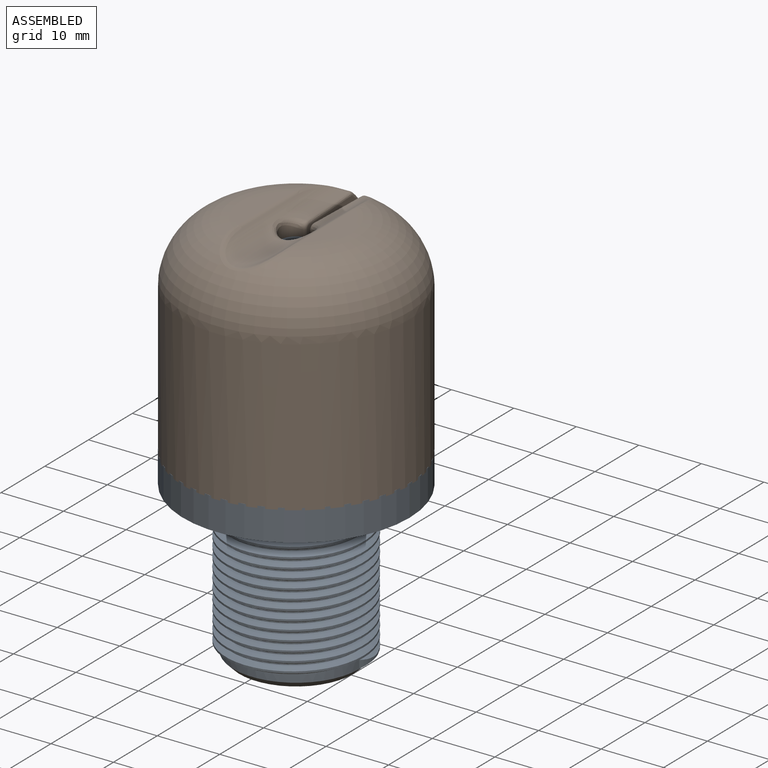
[diagram: assembled view]
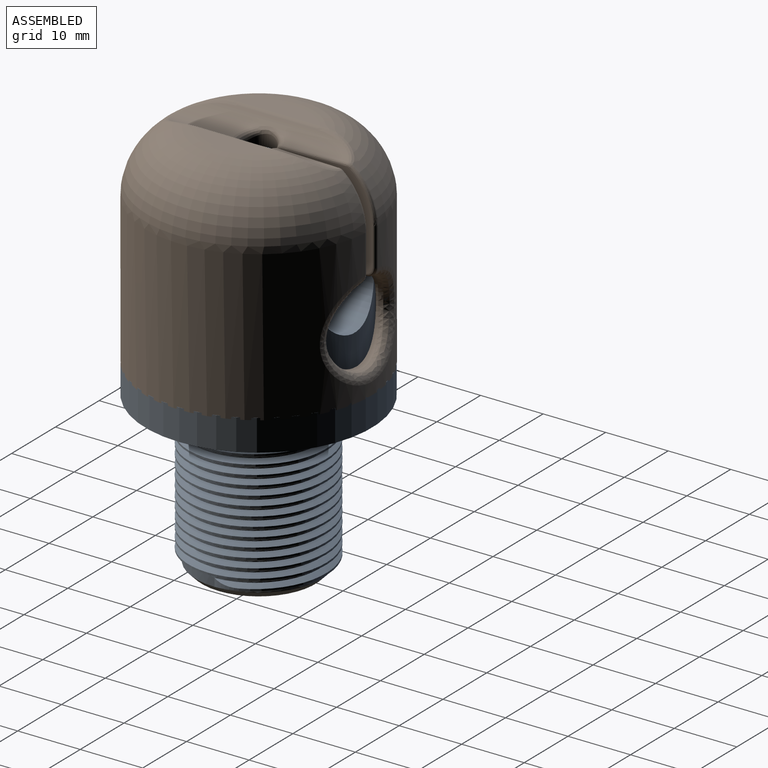
[diagram: assembled view, second angle]
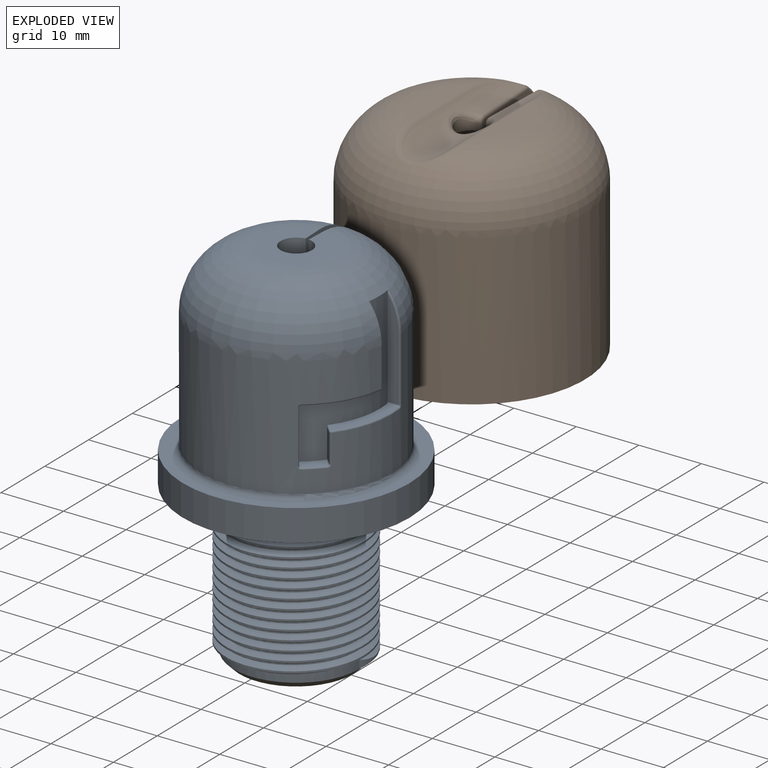
[diagram: exploded view]
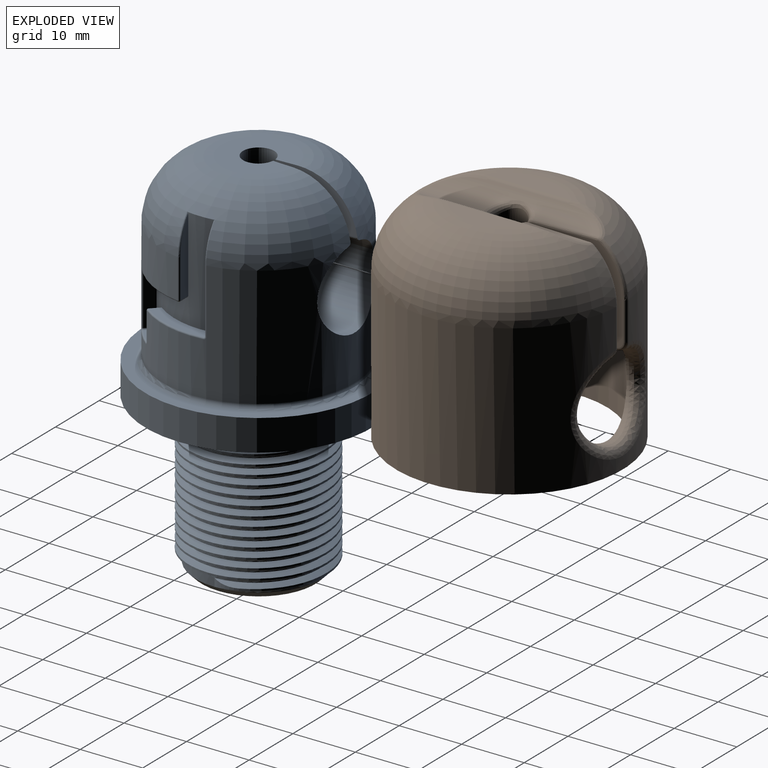
[diagram: exploded view, second angle]
ASSEMBLY  parts=2 mates=2
PART A: 81 faces, bbox 36.8x36.8x60.1 mm
  f0: cylinder r=10.08mm len=24mm, axis (0,0,1), area 216.8mm2, adj f6,f11,f77,f79,f80
  f1: plane 11.61x1.74mm, normal (0,-1,0), area 17.1mm2, adj f27,f32,f33,f34
  f2: torus R=5.88mm, axis (0,0,1), area 1035.1mm2, adj f3,f5,f13,f14,f15,f20,f27,f32
  f3: cylinder r=15.38mm len=30.75mm, axis (0,0,-1), area 1473.7mm2, adj f2,f15,f33,f36,f38,f39,f41,f42
  f4: plane 11.61x1.74mm, normal (0,1,0), area 17.1mm2, adj f20,f53,f55,f56
  f5: plane 11.75x11.74mm, normal (0,0,1), area 86.6mm2, adj f2,f12,f13,f14
  f6: plane 36.85x36.85mm, normal (0,0,-1), area 680.7mm2, adj f0,f16,f77,f78,f79
  f7: cylinder r=6.5mm len=25mm, axis (0,0,1), area 1021mm2, adj f8,f10
  f8: plane 18.16x18.16mm, normal (0,0,-1), area 126.3mm2, adj f7,f11
  f9: sphere r=7.5mm, area 323.1mm2, adj f10,f12,f13,f14,f15,f74,f75
  f10: cone r=6.5mm half-angle=2.4deg, axis (0,0,1), area 899.7mm2, adj f7,f9,f15
  f11: cone r=10.08mm half-angle=45deg, axis (0,0,1), area 85.1mm2, adj f0,f8
  f12: cylinder r=2.5mm len=5mm, axis (0,0,1), area 54.9mm2, adj f5,f9,f13,f14
  f13: plane 12.9x8.26mm, normal (-1,0.04,0), area 71.7mm2, adj f2,f5,f9,f12,f74
  f14: plane 12.9x8.26mm, normal (1,0.04,0), area 71.7mm2, adj f2,f5,f9,f12,f75
  f15: cylinder r=6.5mm len=13mm, axis (0,-1,0), area 375.2mm2, adj f2,f3,f9,f10,f74,f75
  f16: cylinder r=18.12mm len=36.25mm, axis (0,0,-1), area 569.4mm2, adj f6,f17
  f17: plane 36.25x36.25mm, normal (0,0,1), area 215.2mm2, adj f16,f76
  f18: plane 10.95x4.35mm, normal (0,0,1), area 19.1mm2, adj f20,f57,f63,f64
  f19: plane 15.61x1.74mm, normal (0,-1,0), area 24.1mm2, adj f20,f54,f57,f58
  f20: cylinder r=13.38mm len=21.33mm, axis (0,0,1), area 128.7mm2, adj f2,f4,f18,f19,f21,f22,f23,f24
  f21: plane 8.5x1.25mm, normal (0.72,0.69,0), area 14.7mm2, adj f20,f62,f67,f68
  f22: plane 9.77x7mm, normal (0,0,-1), area 19.1mm2, adj f20,f56,f61,f62
  f23: plane 3.74x3.7mm, normal (0,0,1), area 6.1mm2, adj f20,f68,f69,f73
  f24: plane 4.5x1.25mm, normal (-0.72,-0.69,0), area 7.8mm2, adj f20,f63,f69,f70
  f25: plane 10.95x4.35mm, normal (0,0,1), area 19.1mm2, adj f27,f46,f48,f49
  f26: plane 15.61x1.74mm, normal (0,1,0), area 24.1mm2, adj f27,f49,f51,f52
  f27: cylinder r=13.38mm len=21.33mm, axis (0,0,1), area 128.7mm2, adj f1,f2,f25,f26,f28,f29,f30,f31
  f28: plane 8.5x1.25mm, normal (-0.72,-0.69,0), area 14.7mm2, adj f27,f37,f39,f40
  f29: plane 9.77x7mm, normal (0,0,-1), area 19.1mm2, adj f27,f34,f36,f37
  f30: plane 3.74x3.7mm, normal (0,0,1), area 6.1mm2, adj f27,f40,f42,f43
  f31: plane 4.5x1.25mm, normal (0.72,0.69,0), area 7.8mm2, adj f27,f43,f45,f46
  f32: bspline ~8.42x2.62mm, area 2.6mm2, adj f1,f2,f27,f33
  f33: cylinder r=0.25mm len=6.25mm, axis (0,0,-1), area 2.7mm2, adj f1,f3,f32,f35
  f34: cylinder r=0.25mm len=1.77mm, axis (-1,0,0), area 0.7mm2, adj f1,f27,f29,f35
  f35: sphere r=0.25mm, area 0.1mm2, adj f33,f34,f36
  f36: torus R=15.12mm, axis (0,0,1), area 4.6mm2, adj f3,f29,f35,f38
  f37: cylinder r=0.25mm len=1.47mm, axis (-0.69,0.72,0), area 0.7mm2, adj f27,f28,f29,f38
  f38: bspline ~0.61x0.53mm, area 0.2mm2, adj f3,f36,f37,f39
  f39: cylinder r=0.25mm len=8.5mm, axis (0,0,-1), area 3.7mm2, adj f3,f28,f38,f41
  f40: cylinder r=0.25mm len=1.47mm, axis (0.69,-0.72,0), area 0.7mm2, adj f27,f28,f30,f41
  f41: bspline ~0.59x0.53mm, area 0.2mm2, adj f3,f39,f40,f42
  f42: torus R=15.12mm, axis (0,0,1), area 1.4mm2, adj f3,f30,f41,f44
  f43: cylinder r=0.25mm len=1.47mm, axis (0.69,-0.72,0), area 0.7mm2, adj f27,f30,f31,f44
  f44: bspline ~0.61x0.54mm, area 0.2mm2, adj f3,f42,f43,f45
  f45: cylinder r=0.25mm len=4.5mm, axis (0,0,-1), area 1.9mm2, adj f3,f31,f44,f47
  f46: cylinder r=0.25mm len=1.45mm, axis (-0.69,0.72,0), area 0.7mm2, adj f25,f27,f31,f47
  f47: sphere r=0.25mm, area 0.1mm2, adj f45,f46,f48
  f48: torus R=15.12mm, axis (0,0,1), area 4.6mm2, adj f3,f25,f47,f50
  f49: cylinder r=0.25mm len=1.8mm, axis (1,0,0), area 0.7mm2, adj f25,f26,f27,f50
  f50: bspline ~0.61x0.59mm, area 0.2mm2, adj f3,f48,f49,f51
  f51: cylinder r=0.25mm len=10.25mm, axis (0,0,-1), area 4.4mm2, adj f3,f26,f50,f52
  f52: bspline ~7x2.62mm, area 2.6mm2, adj f2,f26,f27,f51
  f53: bspline ~8.42x2.62mm, area 2.6mm2, adj f2,f4,f20,f55
  f54: bspline ~7x2.62mm, area 2.6mm2, adj f2,f19,f20,f58
  f55: cylinder r=0.25mm len=6.25mm, axis (0,0,-1), area 2.7mm2, adj f3,f4,f53,f59
  f56: cylinder r=0.25mm len=1.77mm, axis (1,0,0), area 0.7mm2, adj f4,f20,f22,f59
  f57: cylinder r=0.25mm len=1.8mm, axis (-1,0,0), area 0.7mm2, adj f18,f19,f20,f60
  f58: cylinder r=0.25mm len=10.25mm, axis (0,0,-1), area 4.4mm2, adj f3,f19,f54,f60
  f59: sphere r=0.25mm, area 0.1mm2, adj f55,f56,f61
  f60: bspline ~0.61x0.59mm, area 0.2mm2, adj f3,f57,f58,f64
  f61: torus R=15.12mm, axis (0,0,1), area 4.6mm2, adj f3,f22,f59,f65
  f62: cylinder r=0.25mm len=1.47mm, axis (0.69,-0.72,0), area 0.7mm2, adj f20,f21,f22,f65
  f63: cylinder r=0.25mm len=1.45mm, axis (0.69,-0.72,0), area 0.7mm2, adj f18,f20,f24,f66
  f64: torus R=15.12mm, axis (0,0,1), area 4.6mm2, adj f3,f18,f60,f66
  f65: bspline ~0.61x0.53mm, area 0.2mm2, adj f3,f61,f62,f67
  f66: sphere r=0.25mm, area 0.1mm2, adj f63,f64,f70
  f67: cylinder r=0.25mm len=8.5mm, axis (0,0,-1), area 3.7mm2, adj f3,f21,f65,f71
  f68: cylinder r=0.25mm len=1.47mm, axis (-0.69,0.72,0), area 0.7mm2, adj f20,f21,f23,f71
  f69: cylinder r=0.25mm len=1.47mm, axis (-0.69,0.72,0), area 0.7mm2, adj f20,f23,f24,f72
  f70: cylinder r=0.25mm len=4.5mm, axis (0,0,-1), area 1.9mm2, adj f3,f24,f66,f72
  f71: bspline ~0.59x0.53mm, area 0.2mm2, adj f3,f67,f68,f73
  f72: bspline ~0.61x0.54mm, area 0.2mm2, adj f3,f69,f70,f73
  f73: torus R=15.12mm, axis (0,0,1), area 1.4mm2, adj f3,f23,f71,f72
  f74: bspline ~8.36x0.76mm, area 5.8mm2, adj f2,f9,f13,f15
  f75: bspline ~8.36x0.76mm, area 5.8mm2, adj f2,f9,f14,f15
  f76: torus R=16.12mm, axis (0,0,1), area 115.8mm2, adj f3,f17
  f77: bspline ~25.4x24.5mm, area 1099.2mm2, adj f0,f6,f78,f80
  f78: cylinder r=11mm len=23.41mm, axis (0,0,1), area 443.6mm2, adj f6,f77,f79,f80
  f79: bspline ~25.4x23.75mm, area 1053mm2, adj f0,f6,f78,f80
  f80: cylinder r=5mm len=4.02mm, axis (0,0,1), area 3.3mm2, adj f0,f77,f78,f79
PART B: 82 faces, bbox 36.4x36.4x34.1 mm
  f0: bspline ~8.3x4.54mm, area 7.1mm2, adj f6,f9,f14,f64
  f1: cylinder r=18.12mm len=36.25mm, axis (0,0,-1), area 2489.8mm2, adj f5,f6,f29,f54,f62
  f2: cylinder r=15.62mm len=31.25mm, axis (0,0,1), area 1886.6mm2, adj f5,f8,f10,f17,f18,f21,f22,f26
  f3: plane 12.96x3.23mm, normal (0,0,1), area 29.2mm2, adj f6,f13
  f4: plane 12.96x3.23mm, normal (0,0,1), area 29.2mm2, adj f6,f14
  f5: plane 36.25x36.25mm, normal (0,0,-1), area 265.1mm2, adj f1,f2
  f6: torus R=8.12mm, axis (0,0,1), area 1297mm2, adj f0,f1,f3,f4,f12,f15,f55,f63
  f7: plane 13.25x13.24mm, normal (0,0,-1), area 115.3mm2, adj f8,f11,f17,f18,f59,f67
  f8: torus R=6.62mm, axis (0,0,1), area 1077.2mm2, adj f2,f7,f17,f18
  f9: cylinder r=6mm len=27.34mm, axis (0,-1,0), area 161.8mm2, adj f0,f12,f13,f14,f15,f16,f57,f65
  f10: cylinder r=6.5mm len=13mm, axis (0,1,0), area 25.7mm2, adj f2,f29,f52,f60
  f11: cylinder r=2.5mm len=5mm, axis (0,0,1), area 21.6mm2, adj f7,f16,f59,f67
  f12: bspline ~9.84x9.09mm, area 15.9mm2, adj f6,f9,f13,f14
  f13: cylinder r=1mm len=12.96mm, axis (0,-1,0), area 10mm2, adj f3,f9,f12,f15
  f14: cylinder r=1mm len=12.96mm, axis (0,-1,0), area 10mm2, adj f0,f4,f9,f12
  f15: bspline ~8.95x4.05mm, area 7.1mm2, adj f6,f9,f13,f56
  f16: bspline ~6.89x6mm, area 21mm2, adj f9,f11,f58,f66
  f17: plane 14.87x14.79mm, normal (-1,-0.04,0), area 57.8mm2, adj f2,f7,f8,f60,f61,f62,f63,f64
  f18: plane 14.87x14.79mm, normal (1,-0.04,0), area 57.8mm2, adj f2,f7,f8,f52,f53,f54,f55,f56
  f19: plane 3.35x1.2mm, normal (0,-1,0), area 4mm2, adj f32,f36,f40,f70
  f20: plane 3.35x1.2mm, normal (0,1,0), area 4mm2, adj f33,f37,f41,f71
  f21: plane 3.3x1.59mm, normal (0,0,1), area 4.7mm2, adj f2,f68,f69,f70,f71,f74
  f22: plane 3.3x1.59mm, normal (0,0,-1), area 4.7mm2, adj f2,f38,f39,f40,f41,f44
  f23: cylinder r=13.88mm len=3.35mm, axis (0,0,-1), area 10.2mm2, adj f36,f37,f44,f74
  f24: plane 3.35x1.2mm, normal (0,1,0), area 4mm2, adj f30,f34,f47,f77
  f25: plane 3.35x1.2mm, normal (0,-1,0), area 4mm2, adj f31,f35,f48,f78
  f26: plane 3.3x1.59mm, normal (0,0,1), area 4.7mm2, adj f2,f75,f76,f77,f78,f81
  f27: plane 3.3x1.59mm, normal (0,0,-1), area 4.7mm2, adj f2,f45,f46,f47,f48,f51
  f28: cylinder r=13.88mm len=3.35mm, axis (0,0,-1), area 10.2mm2, adj f34,f35,f51,f81
  f29: bspline ~17.46x16.01mm, area 118.8mm2, adj f1,f10,f53,f61
  f30: cylinder r=0.25mm len=3.35mm, axis (0,0,1), area 1.4mm2, adj f2,f24,f45,f75
  f31: cylinder r=0.25mm len=3.35mm, axis (0,0,1), area 1.4mm2, adj f2,f25,f46,f76
  f32: cylinder r=0.25mm len=3.35mm, axis (0,0,1), area 1.4mm2, adj f2,f19,f38,f68
  f33: cylinder r=0.25mm len=3.35mm, axis (0,0,1), area 1.4mm2, adj f2,f20,f39,f69
  f34: cylinder r=0.25mm len=3.35mm, axis (0,0,-1), area 1.4mm2, adj f24,f28,f49,f79
  f35: cylinder r=0.25mm len=3.35mm, axis (0,0,-1), area 1.4mm2, adj f25,f28,f50,f80
  f36: cylinder r=0.25mm len=3.35mm, axis (0,0,-1), area 1.4mm2, adj f19,f23,f42,f72
  f37: cylinder r=0.25mm len=3.35mm, axis (0,0,-1), area 1.4mm2, adj f20,f23,f43,f73
  f38: torus R=0.5mm, axis (0,0,1), area 0.1mm2, adj f2,f22,f32,f40
  f39: torus R=0.5mm, axis (0,0,1), area 0.1mm2, adj f2,f22,f33,f41
  f40: cylinder r=0.25mm len=1.2mm, axis (1,0,0), area 0.5mm2, adj f19,f22,f38,f42
  f41: cylinder r=0.25mm len=1.2mm, axis (-1,0,0), area 0.5mm2, adj f20,f22,f39,f43
  f42: sphere r=0.25mm, area 0.1mm2, adj f36,f40,f44
  f43: sphere r=0.25mm, area 0.1mm2, adj f37,f41,f44
  f44: torus R=14.12mm, axis (0,0,1), area 1.2mm2, adj f22,f23,f42,f43
  f45: torus R=0.5mm, axis (0,0,1), area 0.1mm2, adj f2,f27,f30,f47
  f46: torus R=0.5mm, axis (0,0,1), area 0.1mm2, adj f2,f27,f31,f48
  f47: cylinder r=0.25mm len=1.2mm, axis (-1,0,0), area 0.5mm2, adj f24,f27,f45,f49
  f48: cylinder r=0.25mm len=1.2mm, axis (1,0,0), area 0.5mm2, adj f25,f27,f46,f50
  f49: sphere r=0.25mm, area 0.1mm2, adj f34,f47,f51
  f50: sphere r=0.25mm, area 0.1mm2, adj f35,f48,f51
  f51: torus R=14.12mm, axis (0,0,1), area 1.2mm2, adj f27,f28,f49,f50
  f52: bspline ~1.04x0.5mm, area 0.7mm2, adj f2,f10,f18,f53
  f53: bspline ~1.89x1.86mm, area 1.5mm2, adj f18,f29,f52,f54
  f54: cylinder r=0.5mm len=6.11mm, axis (0,0,-1), area 4.9mm2, adj f1,f18,f53,f55
  f55: bspline ~11.32x6mm, area 7.2mm2, adj f6,f18,f54,f56
  f56: bspline ~0.78x0.63mm, area 0.4mm2, adj f15,f18,f55,f57
  f57: bspline ~10.23x0.84mm, area 7.2mm2, adj f9,f18,f56,f58
  f58: bspline ~1.22x1.05mm, area 0.8mm2, adj f16,f18,f57,f59
  f59: cylinder r=0.5mm len=1.06mm, axis (0,0,1), area 0.7mm2, adj f7,f11,f18,f58
  f60: bspline ~1.04x0.5mm, area 0.7mm2, adj f2,f10,f17,f61
  f61: bspline ~1.89x1.86mm, area 1.5mm2, adj f17,f29,f60,f62
  f62: cylinder r=0.5mm len=6.11mm, axis (0,0,-1), area 4.9mm2, adj f1,f17,f61,f63
  f63: bspline ~9.68x5.07mm, area 7.2mm2, adj f6,f17,f62,f64
  f64: bspline ~0.96x0.63mm, area 0.4mm2, adj f0,f17,f63,f65
  f65: bspline ~10.23x0.84mm, area 7.2mm2, adj f9,f17,f64,f66
  f66: bspline ~1.21x1.05mm, area 0.8mm2, adj f16,f17,f65,f67
  f67: cylinder r=0.5mm len=1.06mm, axis (0,0,1), area 0.7mm2, adj f7,f11,f17,f66
  f68: torus R=0.5mm, axis (0,0,1), area 0.1mm2, adj f2,f21,f32,f70
  f69: torus R=0.5mm, axis (0,0,1), area 0.1mm2, adj f2,f21,f33,f71
  f70: cylinder r=0.25mm len=1.2mm, axis (-1,0,0), area 0.5mm2, adj f19,f21,f68,f72
  f71: cylinder r=0.25mm len=1.2mm, axis (1,0,0), area 0.5mm2, adj f20,f21,f69,f73
  f72: sphere r=0.25mm, area 0.1mm2, adj f36,f70,f74
  f73: sphere r=0.25mm, area 0.1mm2, adj f37,f71,f74
  f74: torus R=14.12mm, axis (0,0,1), area 1.2mm2, adj f21,f23,f72,f73
  f75: torus R=0.5mm, axis (0,0,1), area 0.1mm2, adj f2,f26,f30,f77
  f76: torus R=0.5mm, axis (0,0,1), area 0.1mm2, adj f2,f26,f31,f78
  f77: cylinder r=0.25mm len=1.2mm, axis (1,0,0), area 0.5mm2, adj f24,f26,f75,f79
  f78: cylinder r=0.25mm len=1.2mm, axis (-1,0,0), area 0.5mm2, adj f25,f26,f76,f80
  f79: sphere r=0.25mm, area 0.1mm2, adj f34,f77,f81
  f80: sphere r=0.25mm, area 0.1mm2, adj f35,f78,f81
  f81: torus R=14.12mm, axis (0,0,1), area 1.2mm2, adj f26,f28,f79,f80
PLACE A t=(22.46,38.24,-12.79)mm fixed
PLACE B rot(axis=(0,0,-1),180deg) t=(22.46,38.24,-8.11)mm
MATE parallel B.f19 <-> A.f19  axis (0,1,0) through (37.1,40.04,-1.19)mm
MATE cylindrical A.f2 <-> B.f1  axis (0,0,-1) through (22.46,38.24,2.59)mm
